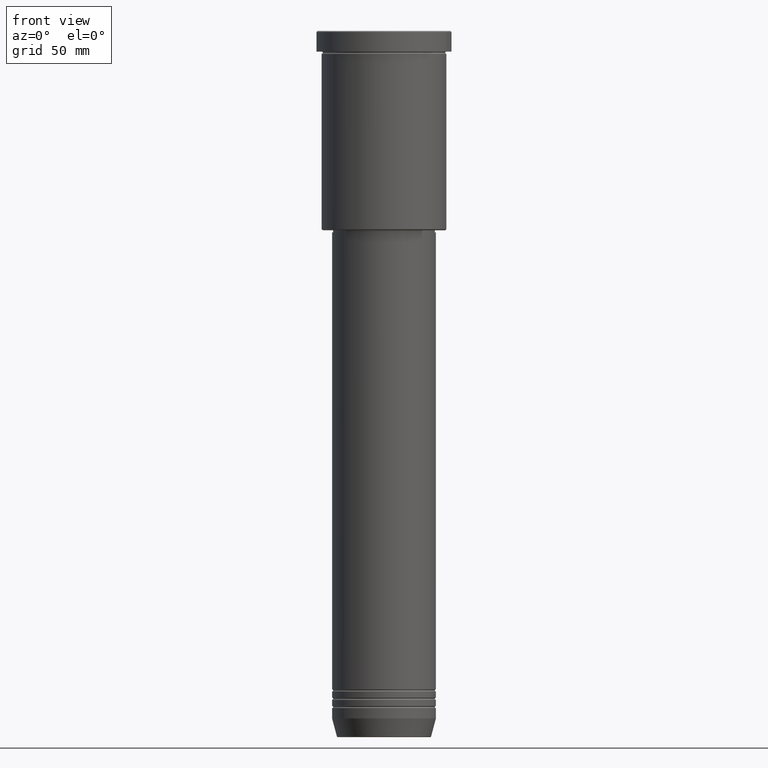
[diagram: clean part render]
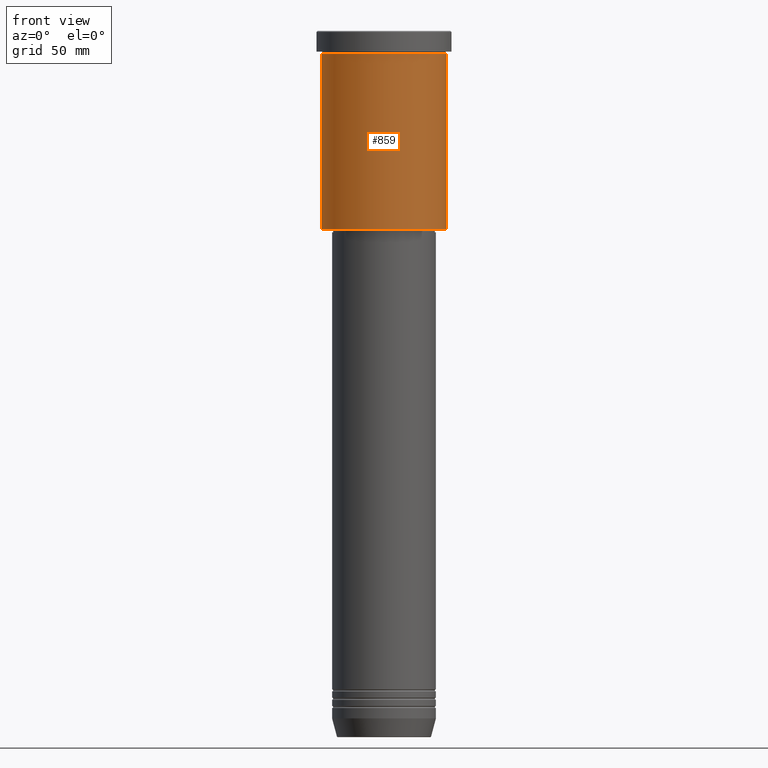
[diagram: same view with one face highlighted and labeled with its STEP entity id]
A machine part, front view. The second image highlights one B-rep face of the part: STEP entity #859.
In plain terms, the highlighted cylindrical surface (partial cylindrical patch) has radius 30 mm, axis along (-0, -0, 1).
Its self-contained STEP definition (entity closure, byte-faithful):
#5 = AXIS2_PLACEMENT_3D ( 'NONE', #492, #595, #858 ) ;
#11 = CARTESIAN_POINT ( 'NONE',  ( 30.00000000000000000, 0.000000000000000000, -10.99999999999999289 ) ) ;
#18 = CARTESIAN_POINT ( 'NONE',  ( -30.00000000000000000, 3.673940397442059178E-15, -95.49999999999995737 ) ) ;
#24 = DIRECTION ( 'NONE',  ( 1.000000000000000000, 0.000000000000000000, 0.000000000000000000 ) ) ;
#27 = CIRCLE ( 'NONE', #5, 30.00000000000000000 ) ;
#44 = EDGE_CURVE ( 'NONE', #334, #173, #837, .T. ) ;
#55 = ORIENTED_EDGE ( 'NONE', *, *, #44, .F. ) ;
#113 = CYLINDRICAL_SURFACE ( 'NONE', #645, 30.00000000000000000 ) ;
#140 = CARTESIAN_POINT ( 'NONE',  ( 30.00000000000000000, 0.000000000000000000, 0.000000000000000000 ) ) ;
#149 = VERTEX_POINT ( 'NONE', #869 ) ;
#173 = VERTEX_POINT ( 'NONE', #11 ) ;
#186 = FACE_OUTER_BOUND ( 'NONE', #462, .T. ) ;
#191 = VERTEX_POINT ( 'NONE', #18 ) ;
#302 = ORIENTED_EDGE ( 'NONE', *, *, #1034, .F. ) ;
#334 = VERTEX_POINT ( 'NONE', #946 ) ;
#340 = CARTESIAN_POINT ( 'NONE',  ( -30.00000000000000000, 3.673940397442059178E-15, 0.000000000000000000 ) ) ;
#408 = DIRECTION ( 'NONE',  ( -0.000000000000000000, -0.000000000000000000, 1.000000000000000000 ) ) ;
#411 = LINE ( 'NONE', #140, #481 ) ;
#443 = EDGE_CURVE ( 'NONE', #191, #149, #27, .T. ) ;
#447 = DIRECTION ( 'NONE',  ( 1.000000000000000000, 0.000000000000000000, 0.000000000000000000 ) ) ;
#462 = EDGE_LOOP ( 'NONE', ( #302, #1144, #1178, #55 ) ) ;
#470 = DIRECTION ( 'NONE',  ( -0.000000000000000000, -0.000000000000000000, 1.000000000000000000 ) ) ;
#481 = VECTOR ( 'NONE', #408, 1000.000000000000000 ) ;
#492 = CARTESIAN_POINT ( 'NONE',  ( 0.000000000000000000, 0.000000000000000000, -95.49999999999995737 ) ) ;
#512 = LINE ( 'NONE', #340, #1131 ) ;
#595 = DIRECTION ( 'NONE',  ( -0.000000000000000000, -0.000000000000000000, 1.000000000000000000 ) ) ;
#645 = AXIS2_PLACEMENT_3D ( 'NONE', #999, #470, #24 ) ;
#818 = AXIS2_PLACEMENT_3D ( 'NONE', #1101, #824, #447 ) ;
#824 = DIRECTION ( 'NONE',  ( -0.000000000000000000, -0.000000000000000000, 1.000000000000000000 ) ) ;
#837 = CIRCLE ( 'NONE', #818, 30.00000000000000000 ) ;
#858 = DIRECTION ( 'NONE',  ( -1.000000000000000000, 0.000000000000000000, 0.000000000000000000 ) ) ;
#859 = ADVANCED_FACE ( 'NONE', ( #186 ), #113, .T. ) ;
#869 = CARTESIAN_POINT ( 'NONE',  ( 30.00000000000000000, 0.000000000000000000, -95.49999999999995737 ) ) ;
#946 = CARTESIAN_POINT ( 'NONE',  ( -30.00000000000000000, 3.673940397442059178E-15, -10.99999999999999289 ) ) ;
#967 = EDGE_CURVE ( 'NONE', #149, #173, #411, .T. ) ;
#999 = CARTESIAN_POINT ( 'NONE',  ( 0.000000000000000000, 0.000000000000000000, 0.000000000000000000 ) ) ;
#1034 = EDGE_CURVE ( 'NONE', #191, #334, #512, .T. ) ;
#1063 = DIRECTION ( 'NONE',  ( -0.000000000000000000, -0.000000000000000000, 1.000000000000000000 ) ) ;
#1101 = CARTESIAN_POINT ( 'NONE',  ( 0.000000000000000000, 0.000000000000000000, -10.99999999999999289 ) ) ;
#1131 = VECTOR ( 'NONE', #1063, 1000.000000000000000 ) ;
#1144 = ORIENTED_EDGE ( 'NONE', *, *, #443, .T. ) ;
#1178 = ORIENTED_EDGE ( 'NONE', *, *, #967, .T. ) ;